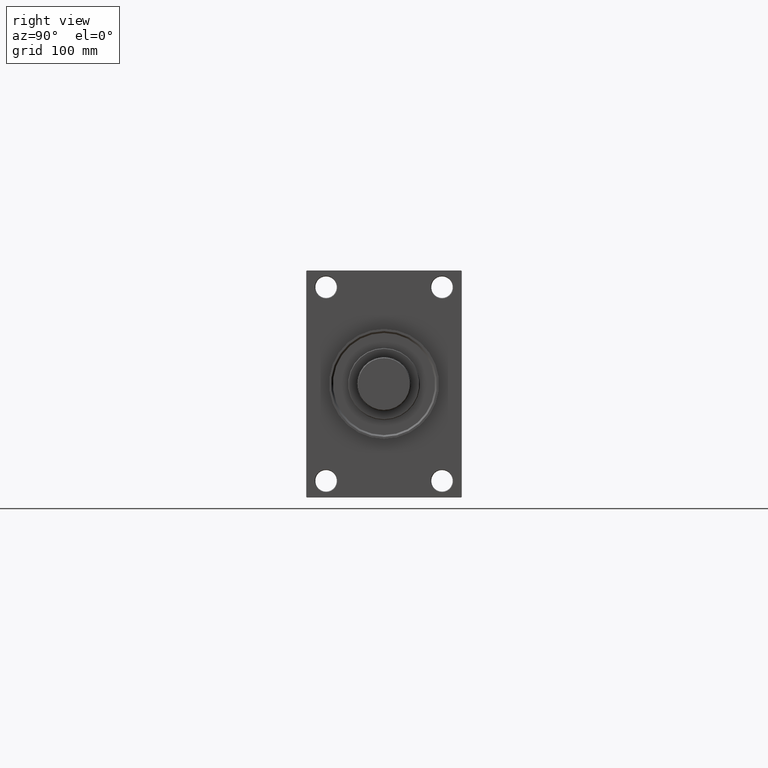
[diagram: clean part render]
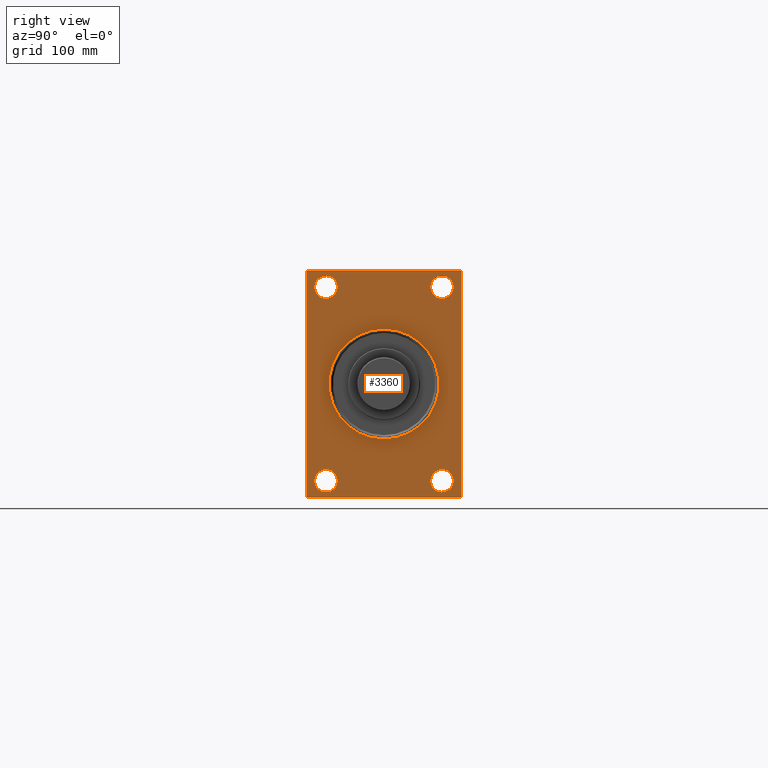
[diagram: same view with one face highlighted and labeled with its STEP entity id]
A machine part, right view. The second image highlights one B-rep face of the part: STEP entity #3360.
In plain terms, the highlighted planar face has unit normal (-1, 0, 0).
Its self-contained STEP definition (entity closure, byte-faithful):
#354 = CARTESIAN_POINT ( 'NONE',  ( 445.9999999999999432, 0.000000000000000000, 0.000000000000000000 ) ) ;
#852 = FACE_OUTER_BOUND ( 'NONE', #3862, .T. ) ;
#1071 = LINE ( 'NONE', #8179, #4408 ) ;
#1095 = DIRECTION ( 'NONE',  ( -1.000000000000000000, 0.000000000000000000, -0.000000000000000000 ) ) ;
#1326 = AXIS2_PLACEMENT_3D ( 'NONE', #47142, #28588, #17117 ) ;
#1648 = VECTOR ( 'NONE', #35988, 1000.000000000000000 ) ;
#1685 = AXIS2_PLACEMENT_3D ( 'NONE', #7054, #1095, #33195 ) ;
#1744 = ORIENTED_EDGE ( 'NONE', *, *, #28467, .T. ) ;
#1828 = EDGE_CURVE ( 'NONE', #42397, #18281, #21081, .T. ) ;
#2829 = EDGE_CURVE ( 'NONE', #40139, #47285, #21138, .T. ) ;
#2874 = DIRECTION ( 'NONE',  ( -1.000000000000000000, 0.000000000000000000, -0.000000000000000000 ) ) ;
#2974 = DIRECTION ( 'NONE',  ( 0.000000000000000000, 0.000000000000000000, 1.000000000000000000 ) ) ;
#2982 = EDGE_LOOP ( 'NONE', ( #6494, #32702 ) ) ;
#3360 = ADVANCED_FACE ( 'NONE', ( #18029, #40274, #44175, #32947, #10715, #852 ), #4287, .F. ) ;
#3526 = CARTESIAN_POINT ( 'NONE',  ( 445.9999999999999432, -65.00000000000001421, -94.50000000000002842 ) ) ;
#3578 = VERTEX_POINT ( 'NONE', #20858 ) ;
#3725 = DIRECTION ( 'NONE',  ( -1.000000000000000000, 0.000000000000000000, -0.000000000000000000 ) ) ;
#3862 = EDGE_LOOP ( 'NONE', ( #12520, #1744, #8436, #40495, #21896, #6032, #9755, #21709 ) ) ;
#4287 = PLANE ( 'NONE',  #1685 ) ;
#4331 = CARTESIAN_POINT ( 'NONE',  ( 445.9999999999999432, 48.50000000000000711, -71.50000000000005684 ) ) ;
#4408 = VECTOR ( 'NONE', #15993, 1000.000000000000114 ) ;
#4985 = LINE ( 'NONE', #31134, #40930 ) ;
#5204 = CARTESIAN_POINT ( 'NONE',  ( 445.9999999999999432, 64.50000000000002842, 94.99999999999997158 ) ) ;
#5492 = CARTESIAN_POINT ( 'NONE',  ( 445.9999999999999432, -65.00000000000001421, 94.99999999999997158 ) ) ;
#5958 = CARTESIAN_POINT ( 'NONE',  ( 445.9999999999999432, 48.50000000000000711, 71.50000000000004263 ) ) ;
#6032 = ORIENTED_EDGE ( 'NONE', *, *, #28676, .T. ) ;
#6494 = ORIENTED_EDGE ( 'NONE', *, *, #6601, .F. ) ;
#6601 = EDGE_CURVE ( 'NONE', #47285, #40139, #11152, .T. ) ;
#7049 = DIRECTION ( 'NONE',  ( 0.000000000000000000, 0.000000000000000000, 1.000000000000000000 ) ) ;
#7054 = CARTESIAN_POINT ( 'NONE',  ( 445.9999999999999432, 0.000000000000000000, 0.000000000000000000 ) ) ;
#7351 = CARTESIAN_POINT ( 'NONE',  ( 445.9999999999999432, 64.99999999999998579, -95.00000000000001421 ) ) ;
#8179 = CARTESIAN_POINT ( 'NONE',  ( 445.9999999999999432, -64.50000000000001421, -95.00000000000002842 ) ) ;
#8436 = ORIENTED_EDGE ( 'NONE', *, *, #19016, .F. ) ;
#8482 = VERTEX_POINT ( 'NONE', #31670 ) ;
#8981 = EDGE_CURVE ( 'NONE', #23635, #21470, #34697, .T. ) ;
#9399 = CARTESIAN_POINT ( 'NONE',  ( 445.9999999999999432, 5.633375276077824704E-15, -46.00000000000000000 ) ) ;
#9688 = DIRECTION ( 'NONE',  ( -1.000000000000000000, 0.000000000000000000, -0.000000000000000000 ) ) ;
#9755 = ORIENTED_EDGE ( 'NONE', *, *, #36329, .T. ) ;
#9991 = AXIS2_PLACEMENT_3D ( 'NONE', #23913, #45666, #31254 ) ;
#10464 = CARTESIAN_POINT ( 'NONE',  ( 445.9999999999999432, 48.50000000000000711, 81.00000000000000000 ) ) ;
#10715 = FACE_BOUND ( 'NONE', #2982, .T. ) ;
#11152 = CIRCLE ( 'NONE', #40018, 46.00000000000000000 ) ;
#11523 = LINE ( 'NONE', #14712, #34222 ) ;
#11823 = CARTESIAN_POINT ( 'NONE',  ( 445.9999999999999432, 48.50000000000000711, -90.49999999999997158 ) ) ;
#12433 = EDGE_CURVE ( 'NONE', #8482, #19981, #35517, .T. ) ;
#12520 = ORIENTED_EDGE ( 'NONE', *, *, #40254, .T. ) ;
#12561 = DIRECTION ( 'NONE',  ( -0.000000000000000000, -0.7071067811865378028, -0.7071067811865573427 ) ) ;
#12871 = CARTESIAN_POINT ( 'NONE',  ( 445.9999999999999432, 64.99999999999998579, -94.50000000000002842 ) ) ;
#13897 = AXIS2_PLACEMENT_3D ( 'NONE', #25956, #33548, #33058 ) ;
#14228 = CARTESIAN_POINT ( 'NONE',  ( 445.9999999999999432, 64.49999999999998579, -95.00000000000001421 ) ) ;
#14287 = AXIS2_PLACEMENT_3D ( 'NONE', #10464, #2874, #7049 ) ;
#14376 = EDGE_LOOP ( 'NONE', ( #27191, #27628 ) ) ;
#14712 = CARTESIAN_POINT ( 'NONE',  ( 445.9999999999999432, 64.99999999999997158, 94.99999999999997158 ) ) ;
#14897 = CARTESIAN_POINT ( 'NONE',  ( 445.9999999999999432, -48.50000000000000000, 81.00000000000000000 ) ) ;
#15037 = DIRECTION ( 'NONE',  ( 0.000000000000000000, 0.000000000000000000, -1.000000000000000000 ) ) ;
#15816 = EDGE_CURVE ( 'NONE', #19616, #26592, #20803, .T. ) ;
#15993 = DIRECTION ( 'NONE',  ( 0.000000000000000000, 0.7071067811865474617, -0.7071067811865474617 ) ) ;
#16738 = LINE ( 'NONE', #5492, #40565 ) ;
#16906 = DIRECTION ( 'NONE',  ( 0.000000000000000000, 0.000000000000000000, 1.000000000000000000 ) ) ;
#17117 = DIRECTION ( 'NONE',  ( 0.000000000000000000, 0.000000000000000000, 1.000000000000000000 ) ) ;
#17144 = CARTESIAN_POINT ( 'NONE',  ( 445.9999999999999432, 48.50000000000000711, -81.00000000000001421 ) ) ;
#17789 = CIRCLE ( 'NONE', #39623, 9.499999999999953815 ) ;
#18029 = FACE_BOUND ( 'NONE', #38241, .T. ) ;
#18124 = ORIENTED_EDGE ( 'NONE', *, *, #36489, .T. ) ;
#18281 = VERTEX_POINT ( 'NONE', #12871 ) ;
#18304 = DIRECTION ( 'NONE',  ( 0.000000000000000000, 0.000000000000000000, 1.000000000000000000 ) ) ;
#18339 = CARTESIAN_POINT ( 'NONE',  ( 445.9999999999999432, -48.50000000000000000, 90.49999999999995737 ) ) ;
#18642 = CARTESIAN_POINT ( 'NONE',  ( 445.9999999999999432, 0.000000000000000000, 0.000000000000000000 ) ) ;
#18945 = EDGE_LOOP ( 'NONE', ( #48028, #36545 ) ) ;
#19016 = EDGE_CURVE ( 'NONE', #42397, #35887, #33493, .T. ) ;
#19616 = VERTEX_POINT ( 'NONE', #5958 ) ;
#19981 = VERTEX_POINT ( 'NONE', #18339 ) ;
#20104 = DIRECTION ( 'NONE',  ( 0.000000000000000000, -0.7071067811865474617, 0.7071067811865474617 ) ) ;
#20803 = CIRCLE ( 'NONE', #1326, 9.499999999999953815 ) ;
#20858 = CARTESIAN_POINT ( 'NONE',  ( 445.9999999999999432, 64.99999999999997158, 94.50000000000002842 ) ) ;
#21081 = LINE ( 'NONE', #24754, #1648 ) ;
#21138 = CIRCLE ( 'NONE', #37551, 46.00000000000000000 ) ;
#21470 = VERTEX_POINT ( 'NONE', #43425 ) ;
#21709 = ORIENTED_EDGE ( 'NONE', *, *, #46774, .T. ) ;
#21896 = ORIENTED_EDGE ( 'NONE', *, *, #30544, .F. ) ;
#22241 = DIRECTION ( 'NONE',  ( 0.000000000000000000, -1.000000000000000000, -1.067522139062650425E-16 ) ) ;
#22505 = ORIENTED_EDGE ( 'NONE', *, *, #8981, .T. ) ;
#23635 = VERTEX_POINT ( 'NONE', #29713 ) ;
#23759 = LINE ( 'NONE', #5204, #30200 ) ;
#23913 = CARTESIAN_POINT ( 'NONE',  ( 445.9999999999999432, -48.49999999999999289, -81.00000000000001421 ) ) ;
#24754 = CARTESIAN_POINT ( 'NONE',  ( 445.9999999999999432, 64.99999999999998579, -94.50000000000002842 ) ) ;
#25385 = DIRECTION ( 'NONE',  ( -1.000000000000000000, 0.000000000000000000, -0.000000000000000000 ) ) ;
#25956 = CARTESIAN_POINT ( 'NONE',  ( 445.9999999999999432, 48.50000000000000711, -81.00000000000001421 ) ) ;
#26447 = ORIENTED_EDGE ( 'NONE', *, *, #12433, .T. ) ;
#26592 = VERTEX_POINT ( 'NONE', #47063 ) ;
#27191 = ORIENTED_EDGE ( 'NONE', *, *, #15816, .T. ) ;
#27474 = VERTEX_POINT ( 'NONE', #47790 ) ;
#27628 = ORIENTED_EDGE ( 'NONE', *, *, #44424, .T. ) ;
#28467 = EDGE_CURVE ( 'NONE', #42091, #35887, #1071, .T. ) ;
#28588 = DIRECTION ( 'NONE',  ( -1.000000000000000000, 0.000000000000000000, -0.000000000000000000 ) ) ;
#28676 = EDGE_CURVE ( 'NONE', #3578, #41909, #23759, .T. ) ;
#29304 = ORIENTED_EDGE ( 'NONE', *, *, #31042, .T. ) ;
#29382 = DIRECTION ( 'NONE',  ( 0.000000000000000000, 7.304098846218135653E-17, -1.000000000000000000 ) ) ;
#29608 = DIRECTION ( 'NONE',  ( 0.000000000000000000, -1.000000000000000000, 0.000000000000000000 ) ) ;
#29713 = CARTESIAN_POINT ( 'NONE',  ( 445.9999999999999432, -48.49999999999999289, -90.49999999999997158 ) ) ;
#30200 = VECTOR ( 'NONE', #20104, 1000.000000000000114 ) ;
#30544 = EDGE_CURVE ( 'NONE', #3578, #18281, #44030, .T. ) ;
#30650 = VECTOR ( 'NONE', #22241, 1000.000000000000000 ) ;
#31042 = EDGE_CURVE ( 'NONE', #21470, #23635, #31062, .T. ) ;
#31062 = CIRCLE ( 'NONE', #9991, 9.499999999999953815 ) ;
#31134 = CARTESIAN_POINT ( 'NONE',  ( 445.9999999999999432, -65.00000000000001421, 94.49999999999997158 ) ) ;
#31254 = DIRECTION ( 'NONE',  ( 0.000000000000000000, 0.000000000000000000, 1.000000000000000000 ) ) ;
#31667 = EDGE_LOOP ( 'NONE', ( #22505, #29304 ) ) ;
#31670 = CARTESIAN_POINT ( 'NONE',  ( 445.9999999999999432, -48.50000000000000000, 71.50000000000004263 ) ) ;
#32702 = ORIENTED_EDGE ( 'NONE', *, *, #2829, .F. ) ;
#32947 = FACE_BOUND ( 'NONE', #14376, .T. ) ;
#33058 = DIRECTION ( 'NONE',  ( 0.000000000000000000, 0.000000000000000000, 1.000000000000000000 ) ) ;
#33195 = DIRECTION ( 'NONE',  ( -0.000000000000000000, 0.000000000000000000, 1.000000000000000000 ) ) ;
#33493 = LINE ( 'NONE', #7351, #30650 ) ;
#33548 = DIRECTION ( 'NONE',  ( -1.000000000000000000, 0.000000000000000000, -0.000000000000000000 ) ) ;
#33551 = DIRECTION ( 'NONE',  ( 1.000000000000000000, 0.000000000000000000, 0.000000000000000000 ) ) ;
#33673 = VERTEX_POINT ( 'NONE', #4331 ) ;
#34222 = VECTOR ( 'NONE', #29608, 1000.000000000000000 ) ;
#34306 = EDGE_CURVE ( 'NONE', #39271, #33673, #34971, .T. ) ;
#34409 = CARTESIAN_POINT ( 'NONE',  ( 445.9999999999999432, -64.50000000000001421, -95.00000000000002842 ) ) ;
#34697 = CIRCLE ( 'NONE', #37792, 9.499999999999953815 ) ;
#34707 = EDGE_CURVE ( 'NONE', #33673, #39271, #17789, .T. ) ;
#34971 = CIRCLE ( 'NONE', #13897, 9.499999999999953815 ) ;
#35230 = DIRECTION ( 'NONE',  ( -1.000000000000000000, 0.000000000000000000, -0.000000000000000000 ) ) ;
#35349 = CIRCLE ( 'NONE', #14287, 9.499999999999953815 ) ;
#35517 = CIRCLE ( 'NONE', #41699, 9.499999999999953815 ) ;
#35823 = CARTESIAN_POINT ( 'NONE',  ( 445.9999999999999432, -48.50000000000000000, 81.00000000000000000 ) ) ;
#35887 = VERTEX_POINT ( 'NONE', #34409 ) ;
#35988 = DIRECTION ( 'NONE',  ( -0.000000000000000000, 0.7071067811865573427, 0.7071067811865378028 ) ) ;
#36026 = CARTESIAN_POINT ( 'NONE',  ( 445.9999999999999432, 64.50000000000002842, 94.99999999999997158 ) ) ;
#36329 = EDGE_CURVE ( 'NONE', #41909, #42106, #11523, .T. ) ;
#36489 = EDGE_CURVE ( 'NONE', #19981, #8482, #36549, .T. ) ;
#36545 = ORIENTED_EDGE ( 'NONE', *, *, #34707, .T. ) ;
#36549 = CIRCLE ( 'NONE', #41274, 9.499999999999953815 ) ;
#37437 = CARTESIAN_POINT ( 'NONE',  ( 445.9999999999999432, -48.49999999999999289, -81.00000000000001421 ) ) ;
#37551 = AXIS2_PLACEMENT_3D ( 'NONE', #18642, #33551, #44775 ) ;
#37792 = AXIS2_PLACEMENT_3D ( 'NONE', #37437, #3725, #2974 ) ;
#38241 = EDGE_LOOP ( 'NONE', ( #26447, #18124 ) ) ;
#39271 = VERTEX_POINT ( 'NONE', #11823 ) ;
#39494 = DIRECTION ( 'NONE',  ( 0.000000000000000000, 0.000000000000000000, 1.000000000000000000 ) ) ;
#39623 = AXIS2_PLACEMENT_3D ( 'NONE', #17144, #35230, #16906 ) ;
#40018 = AXIS2_PLACEMENT_3D ( 'NONE', #354, #41171, #15037 ) ;
#40139 = VERTEX_POINT ( 'NONE', #9399 ) ;
#40254 = EDGE_CURVE ( 'NONE', #27474, #42091, #16738, .T. ) ;
#40274 = FACE_BOUND ( 'NONE', #31667, .T. ) ;
#40320 = CARTESIAN_POINT ( 'NONE',  ( 445.9999999999999432, 0.000000000000000000, 46.00000000000000000 ) ) ;
#40495 = ORIENTED_EDGE ( 'NONE', *, *, #1828, .T. ) ;
#40565 = VECTOR ( 'NONE', #44004, 1000.000000000000000 ) ;
#40930 = VECTOR ( 'NONE', #12561, 1000.000000000000000 ) ;
#41171 = DIRECTION ( 'NONE',  ( 1.000000000000000000, 0.000000000000000000, 0.000000000000000000 ) ) ;
#41274 = AXIS2_PLACEMENT_3D ( 'NONE', #14897, #25385, #18304 ) ;
#41699 = AXIS2_PLACEMENT_3D ( 'NONE', #35823, #9688, #39494 ) ;
#41909 = VERTEX_POINT ( 'NONE', #36026 ) ;
#42091 = VERTEX_POINT ( 'NONE', #3526 ) ;
#42106 = VERTEX_POINT ( 'NONE', #44812 ) ;
#42397 = VERTEX_POINT ( 'NONE', #14228 ) ;
#43425 = CARTESIAN_POINT ( 'NONE',  ( 445.9999999999999432, -48.49999999999999289, -71.50000000000005684 ) ) ;
#43512 = VECTOR ( 'NONE', #29382, 1000.000000000000000 ) ;
#43786 = CARTESIAN_POINT ( 'NONE',  ( 445.9999999999999432, 64.99999999999997158, 94.99999999999997158 ) ) ;
#44004 = DIRECTION ( 'NONE',  ( 0.000000000000000000, 0.000000000000000000, -1.000000000000000000 ) ) ;
#44030 = LINE ( 'NONE', #43786, #43512 ) ;
#44175 = FACE_BOUND ( 'NONE', #18945, .T. ) ;
#44424 = EDGE_CURVE ( 'NONE', #26592, #19616, #35349, .T. ) ;
#44775 = DIRECTION ( 'NONE',  ( 0.000000000000000000, 0.000000000000000000, -1.000000000000000000 ) ) ;
#44812 = CARTESIAN_POINT ( 'NONE',  ( 445.9999999999999432, -64.50000000000002842, 94.99999999999997158 ) ) ;
#45666 = DIRECTION ( 'NONE',  ( -1.000000000000000000, 0.000000000000000000, -0.000000000000000000 ) ) ;
#46774 = EDGE_CURVE ( 'NONE', #42106, #27474, #4985, .T. ) ;
#47063 = CARTESIAN_POINT ( 'NONE',  ( 445.9999999999999432, 48.50000000000000711, 90.49999999999995737 ) ) ;
#47142 = CARTESIAN_POINT ( 'NONE',  ( 445.9999999999999432, 48.50000000000000711, 81.00000000000000000 ) ) ;
#47285 = VERTEX_POINT ( 'NONE', #40320 ) ;
#47790 = CARTESIAN_POINT ( 'NONE',  ( 445.9999999999999432, -65.00000000000001421, 94.49999999999997158 ) ) ;
#48028 = ORIENTED_EDGE ( 'NONE', *, *, #34306, .T. ) ;